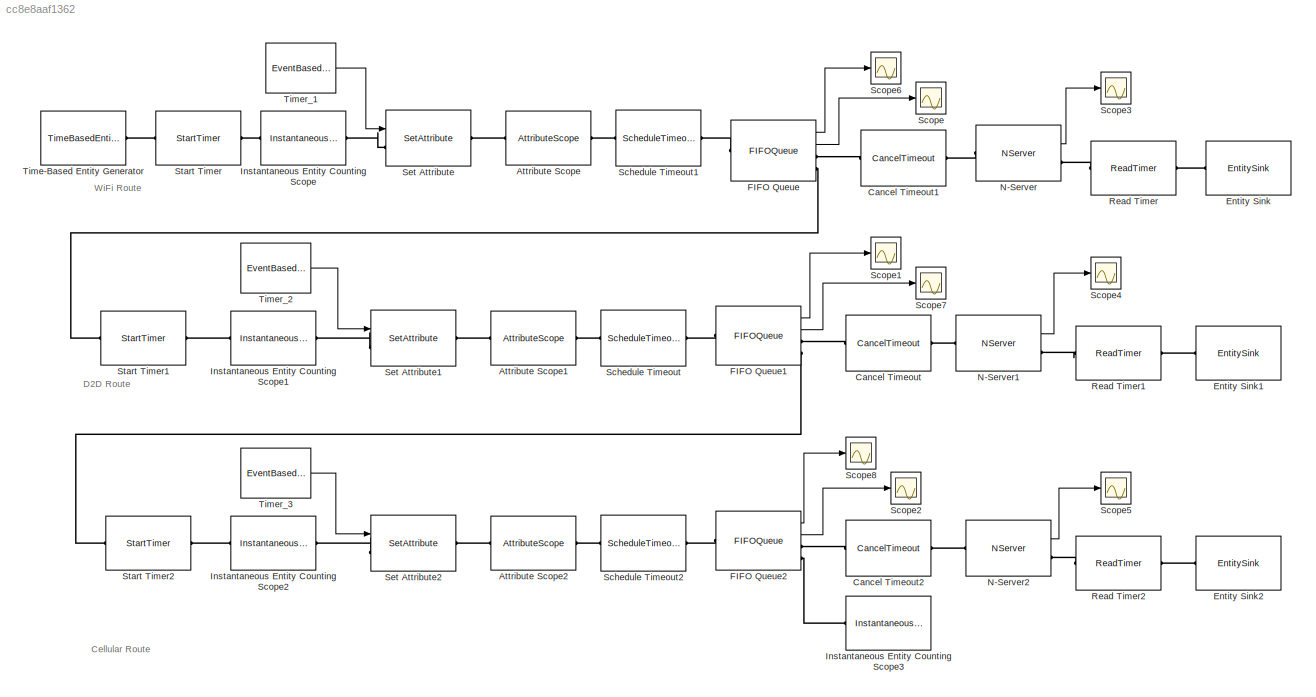
MODEL slx_cc8e8aaf1362
KIND model
CONFIG AbsTol = auto
CONFIG FixedStep = auto
CONFIG MaxStep = auto
CONFIG MinStep = auto
CONFIG RelTol = 1e-3
CONFIG SampleTimeConstraint = Unconstrained
CONFIG Solver = VariableStepAuto
CONFIG SolverMode = Auto
CONFIG SolverName = VariableStepAuto
CONFIG StartTime = 0.0
CONFIG StopTime = 500
BLOCK [AttributeScope] Attribute Scope
  AttributeNameY = Timer
  CopyFcn = des.scope.CallbackSupport('seCopyFcn',gcbh)
  DeleteFcn = des.scope.CallbackSupport('seDeleteFcn',gcbh)
  LoadFcn = des.scope.CallbackSupport('seLoadFcn',gcbh)
  NameChangeFcn = des.scope.CallbackSupport('seNameChangeFcn',gcbh)
  OpenFcn = des.scope.CallbackSupport('seOpenFcn',gcbh)
  Ports = [0, 0, 0, 0, 0, 1, 1]
  PreSaveFcn = des.scope.CallbackSupport('sePreSaveFcn',gcbh)
  StartFcn = des.scope.CallbackSupport('seStartFcn',gcbh)
  StopFcn = des.scope.CallbackSupport('seStopFcn',gcbh)
  Title = X Value from Event Time
  XLabel = Event Time (s)
  YLabel = No. of Entities in Queue
BLOCK [AttributeScope] Attribute Scope1
  AttributeNameY = Timer_2
  CopyFcn = des.scope.CallbackSupport('seCopyFcn',gcbh)
  DeleteFcn = des.scope.CallbackSupport('seDeleteFcn',gcbh)
  LoadFcn = des.scope.CallbackSupport('seLoadFcn',gcbh)
  NameChangeFcn = des.scope.CallbackSupport('seNameChangeFcn',gcbh)
  OpenFcn = des.scope.CallbackSupport('seOpenFcn',gcbh)
  Ports = [0, 0, 0, 0, 0, 1, 1]
  PreSaveFcn = des.scope.CallbackSupport('sePreSaveFcn',gcbh)
  StartFcn = des.scope.CallbackSupport('seStartFcn',gcbh)
  StopFcn = des.scope.CallbackSupport('seStopFcn',gcbh)
  Title = X Value from Event Time
  XLabel = Event Time (s)
  YLabel = No. of Entities in Queue
BLOCK [AttributeScope] Attribute Scope2
  AttributeNameY = Timer_3
  CopyFcn = des.scope.CallbackSupport('seCopyFcn',gcbh)
  DeleteFcn = des.scope.CallbackSupport('seDeleteFcn',gcbh)
  LoadFcn = des.scope.CallbackSupport('seLoadFcn',gcbh)
  NameChangeFcn = des.scope.CallbackSupport('seNameChangeFcn',gcbh)
  OpenFcn = des.scope.CallbackSupport('seOpenFcn',gcbh)
  Ports = [0, 0, 0, 0, 0, 1, 1]
  PreSaveFcn = des.scope.CallbackSupport('sePreSaveFcn',gcbh)
  StartFcn = des.scope.CallbackSupport('seStartFcn',gcbh)
  StopFcn = des.scope.CallbackSupport('seStopFcn',gcbh)
  Title = X Value from Event Time
  XLabel = Event Time (s)
  YLabel = No. of Entities in Queue
BLOCK [CancelTimeout] Cancel Timeout
  Ports = [0, 0, 0, 0, 0, 1, 1]
  TimeoutTag = TO2
BLOCK [CancelTimeout] Cancel Timeout1
  Ports = [0, 0, 0, 0, 0, 1, 1]
BLOCK [CancelTimeout] Cancel Timeout2
  Ports = [0, 0, 0, 0, 0, 1, 1]
  TimeoutTag = TO3
BLOCK [EntitySink] Entity Sink
  Ports = [0, 0, 0, 0, 0, 1]
BLOCK [EntitySink] Entity Sink1
  Ports = [0, 0, 0, 0, 0, 1]
BLOCK [EntitySink] Entity Sink2
  Ports = [0, 0, 0, 0, 0, 1]
BLOCK [FIFOQueue] FIFO Queue
  Capacity = Inf
  EnableTOPort = on
  OutputPortMap = o1,o3
  Ports = [0, 2, 0, 0, 0, 1, 2]
  StatAverageQueueLength = on
  StatNumberInBlock = on
BLOCK [FIFOQueue] FIFO Queue1
  Capacity = Inf
  EnableTOPort = on
  OutputPortMap = o1,o3
  Ports = [0, 2, 0, 0, 0, 1, 2]
  StatAverageQueueLength = on
  StatNumberInBlock = on
BLOCK [FIFOQueue] FIFO Queue2
  Capacity = Inf
  EnableTOPort = on
  OutputPortMap = o1,o3
  Ports = [0, 2, 0, 0, 0, 1, 2]
  StatAverageQueueLength = on
  StatNumberInBlock = on
BLOCK [InstantaneousEntityCountingScope] Instantaneous Entity Counting Scope
  CopyFcn = des.scope.CallbackSupport('seCopyFcn',gcbh)
  DeleteFcn = des.scope.CallbackSupport('seDeleteFcn',gcbh)
  LoadFcn = des.scope.CallbackSupport('seLoadFcn',gcbh)
  NameChangeFcn = des.scope.CallbackSupport('seNameChangeFcn',gcbh)
  OpenFcn = des.scope.CallbackSupport('seOpenFcn',gcbh)
  Ports = [0, 0, 0, 0, 0, 1, 1]
  PreSaveFcn = des.scope.CallbackSupport('sePreSaveFcn',gcbh)
  StartFcn = des.scope.CallbackSupport('seStartFcn',gcbh)
  StopFcn = des.scope.CallbackSupport('seStopFcn',gcbh)
BLOCK [InstantaneousEntityCountingScope] Instantaneous Entity Counting Scope1
  CopyFcn = des.scope.CallbackSupport('seCopyFcn',gcbh)
  DeleteFcn = des.scope.CallbackSupport('seDeleteFcn',gcbh)
  LoadFcn = des.scope.CallbackSupport('seLoadFcn',gcbh)
  NameChangeFcn = des.scope.CallbackSupport('seNameChangeFcn',gcbh)
  OpenFcn = des.scope.CallbackSupport('seOpenFcn',gcbh)
  Ports = [0, 0, 0, 0, 0, 1, 1]
  PreSaveFcn = des.scope.CallbackSupport('sePreSaveFcn',gcbh)
  StartFcn = des.scope.CallbackSupport('seStartFcn',gcbh)
  StopFcn = des.scope.CallbackSupport('seStopFcn',gcbh)
BLOCK [InstantaneousEntityCountingScope] Instantaneous Entity Counting Scope2
  CopyFcn = des.scope.CallbackSupport('seCopyFcn',gcbh)
  DeleteFcn = des.scope.CallbackSupport('seDeleteFcn',gcbh)
  LoadFcn = des.scope.CallbackSupport('seLoadFcn',gcbh)
  NameChangeFcn = des.scope.CallbackSupport('seNameChangeFcn',gcbh)
  OpenFcn = des.scope.CallbackSupport('seOpenFcn',gcbh)
  Ports = [0, 0, 0, 0, 0, 1, 1]
  PreSaveFcn = des.scope.CallbackSupport('sePreSaveFcn',gcbh)
  StartFcn = des.scope.CallbackSupport('seStartFcn',gcbh)
  StopFcn = des.scope.CallbackSupport('seStopFcn',gcbh)
BLOCK [InstantaneousEntityCountingScope] Instantaneous Entity Counting Scope3
  CopyFcn = des.scope.CallbackSupport('seCopyFcn',gcbh)
  DeleteFcn = des.scope.CallbackSupport('seDeleteFcn',gcbh)
  LoadFcn = des.scope.CallbackSupport('seLoadFcn',gcbh)
  NameChangeFcn = des.scope.CallbackSupport('seNameChangeFcn',gcbh)
  OpenFcn = des.scope.CallbackSupport('seOpenFcn',gcbh)
  Ports = [0, 0, 0, 0, 0, 1, 1]
  PreSaveFcn = des.scope.CallbackSupport('sePreSaveFcn',gcbh)
  StartFcn = des.scope.CallbackSupport('seStartFcn',gcbh)
  StopFcn = des.scope.CallbackSupport('seStopFcn',gcbh)
BLOCK [NServer] N-Server
  AttributeName = Patience
  NumberOfServers = 1
  OutputPortMap = o5
  Ports = [0, 1, 0, 0, 0, 1, 1]
  ServiceTimeFrom = Attribute
  StatUtilization = on
BLOCK [NServer] N-Server1
  AttributeName = Patience
  NumberOfServers = 1
  OutputPortMap = o5
  Ports = [0, 1, 0, 0, 0, 1, 1]
  ServiceTimeFrom = Attribute
  StatUtilization = on
BLOCK [NServer] N-Server2
  AttributeName = Patience
  NumberOfServers = 1
  OutputPortMap = o5
  Ports = [0, 1, 0, 0, 0, 1, 1]
  ServiceTimeFrom = Attribute
  StatUtilization = on
BLOCK [ReadTimer] Read Timer
  Ports = [0, 0, 0, 0, 0, 1, 1]
BLOCK [ReadTimer] Read Timer1
  Ports = [0, 0, 0, 0, 0, 1, 1]
BLOCK [ReadTimer] Read Timer2
  Ports = [0, 0, 0, 0, 0, 1, 1]
BLOCK [ScheduleTimeout] Schedule Timeout
  AttributeName = Timer_2
  Ports = [0, 0, 0, 0, 0, 1, 1]
  TimeoutIntervalFrom = Attribute
  TimeoutTag = TO2
BLOCK [ScheduleTimeout] Schedule Timeout1
  AttributeName = Timer
  Ports = [0, 0, 0, 0, 0, 1, 1]
  TimeoutIntervalFrom = Attribute
BLOCK [ScheduleTimeout] Schedule Timeout2
  AttributeName = Timer_3
  Ports = [0, 0, 0, 0, 0, 1, 1]
  TimeoutIntervalFrom = Attribute
  TimeoutTag = TO3
BLOCK [Scope] Scope
  Ports = [1]
  ScopeSpecificationString = Simulink.scopes.TimeScopeBlockCfg('CurrentConfiguration', extmgr.ConfigurationSet(extmgr.Configuration('Core','General UI',true,'FigureColor',[0.941176470588235 0.941176470588235 0.941176470588235]),extmgr.Configuration('Core','Source UI',true),extmgr.Configuration('Sources','WiredSimulink',true),extmgr.Configuration('Visuals','Time Domain',true,'SerializedDisplays',{struct('MinYLimReal','-797.974...<+1663ch>
BLOCK [Scope] Scope1
  Ports = [1]
  ScopeSpecificationString = Simulink.scopes.TimeScopeBlockCfg('CurrentConfiguration', extmgr.ConfigurationSet(extmgr.Configuration('Core','General UI',true,'FigureColor',[0.941176470588235 0.941176470588235 0.941176470588235]),extmgr.Configuration('Core','Source UI',true),extmgr.Configuration('Sources','WiredSimulink',true,'DataLoggingVariableName','ScopeData2'),extmgr.Configuration('Visuals','Time Domain',true,'SerializedDi...<+1685ch>
BLOCK [Scope] Scope2
  Ports = [1]
  ScopeSpecificationString = Simulink.scopes.TimeScopeBlockCfg('CurrentConfiguration', extmgr.ConfigurationSet(extmgr.Configuration('Core','General UI',true,'FigureColor',[0.941176470588235 0.941176470588235 0.941176470588235]),extmgr.Configuration('Core','Source UI',true),extmgr.Configuration('Sources','WiredSimulink',true,'DataLoggingVariableName','ScopeData4'),extmgr.Configuration('Visuals','Time Domain',true,'SerializedDi...<+1699ch>
BLOCK [Scope] Scope3
  Ports = [1]
  ScopeSpecificationString = Simulink.scopes.TimeScopeBlockCfg('CurrentConfiguration', extmgr.ConfigurationSet(extmgr.Configuration('Core','General UI',true,'FigureColor',[0.941176470588235 0.941176470588235 0.941176470588235]),extmgr.Configuration('Core','Source UI',true),extmgr.Configuration('Sources','WiredSimulink',true,'DataLoggingVariableName','ScopeData3'),extmgr.Configuration('Visuals','Time Domain',true,'SerializedDi...<+1686ch>
BLOCK [Scope] Scope4
  Ports = [1]
  ScopeSpecificationString = Simulink.scopes.TimeScopeBlockCfg('CurrentConfiguration', extmgr.ConfigurationSet(extmgr.Configuration('Core','General UI',true,'FigureColor',[0.941176470588235 0.941176470588235 0.941176470588235]),extmgr.Configuration('Core','Source UI',true),extmgr.Configuration('Sources','WiredSimulink',true,'DataLoggingVariableName','ScopeData4'),extmgr.Configuration('Visuals','Time Domain',true,'SerializedDi...<+1697ch>
BLOCK [Scope] Scope5
  Ports = [1]
  ScopeSpecificationString = Simulink.scopes.TimeScopeBlockCfg('CurrentConfiguration', extmgr.ConfigurationSet(extmgr.Configuration('Core','General UI',true,'FigureColor',[0.941176470588235 0.941176470588235 0.941176470588235]),extmgr.Configuration('Core','Source UI',true),extmgr.Configuration('Sources','WiredSimulink',true,'DataLoggingVariableName','ScopeData5'),extmgr.Configuration('Visuals','Time Domain',true,'SerializedDi...<+1707ch>
BLOCK [Scope] Scope6
  Ports = [1]
  ScopeSpecificationString = Simulink.scopes.TimeScopeBlockCfg('CurrentConfiguration', extmgr.ConfigurationSet(extmgr.Configuration('Core','General UI',true,'FigureColor',[0.941176470588235 0.941176470588235 0.941176470588235]),extmgr.Configuration('Core','Source UI',true),extmgr.Configuration('Sources','WiredSimulink',true,'DataLoggingVariableName','ScopeData1'),extmgr.Configuration('Visuals','Time Domain',true,'SerializedDi...<+1716ch>
BLOCK [Scope] Scope7
  Ports = [1]
  ScopeSpecificationString = Simulink.scopes.TimeScopeBlockCfg('CurrentConfiguration', extmgr.ConfigurationSet(extmgr.Configuration('Core','General UI',true,'FigureColor',[0.941176470588235 0.941176470588235 0.941176470588235]),extmgr.Configuration('Core','Source UI',true),extmgr.Configuration('Sources','WiredSimulink',true,'DataLoggingVariableName','ScopeData3'),extmgr.Configuration('Visuals','Time Domain',true,'SerializedDi...<+1713ch>
BLOCK [Scope] Scope8
  Ports = [1]
  ScopeSpecificationString = Simulink.scopes.TimeScopeBlockCfg('CurrentConfiguration', extmgr.ConfigurationSet(extmgr.Configuration('Core','General UI',true,'FigureColor',[0.941176470588235 0.941176470588235 0.941176470588235]),extmgr.Configuration('Core','Source UI',true),extmgr.Configuration('Sources','WiredSimulink',true,'DataLoggingVariableName','ScopeData5'),extmgr.Configuration('Visuals','Time Domain',true,'SerializedDi...<+1693ch>
BLOCK [SetAttribute] Set Attribute
  AttributeFrom = Signal port|Dialog
  AttributeName = Timer|Patience
  AttributeTreatAsVector = 1|1
  AttributeValue = 1|1
  EvaluatedAttributeValue = { [];1}
  InputPortMap = u0
  Ports = [1, 0, 0, 0, 0, 1, 1]
BLOCK [SetAttribute] Set Attribute1
  AttributeFrom = Signal port|Dialog
  AttributeName = Timer_2|Patience
  AttributeTreatAsVector = 1|1
  AttributeValue = 1|1
  EvaluatedAttributeValue = { [];1}
  InputPortMap = u0
  Ports = [1, 0, 0, 0, 0, 1, 1]
BLOCK [SetAttribute] Set Attribute2
  AttributeFrom = Signal port|Dialog
  AttributeName = Timer_3|Patience
  AttributeTreatAsVector = 1|1
  AttributeValue = 1|1
  EvaluatedAttributeValue = { [];1}
  InputPortMap = u0
  Ports = [1, 0, 0, 0, 0, 1, 1]
BLOCK [StartTimer] Start Timer
  Ports = [0, 0, 0, 0, 0, 1, 1]
BLOCK [StartTimer] Start Timer1
  Ports = [0, 0, 0, 0, 0, 1, 1]
BLOCK [StartTimer] Start Timer2
  Ports = [0, 0, 0, 0, 0, 1, 1]
BLOCK [TimeBasedEntityGenerator] Time-Based Entity Generator
  Distribution = Exponential
  InitialSeed = 30384
  Mean = 1/60
  Ports = [0, 0, 0, 0, 0, 0, 1]
BLOCK [EventBasedRandomNumber] Timer_1
  Distribution = Poisson
  OutputPortMap = o0
  Ports = [0, 1]
  Seed = 3452
  maxUnif = 120
  meanNorm = 90
  meanPoiss = 120
  stdNorm = 80
BLOCK [EventBasedRandomNumber] Timer_2
  Distribution = Poisson
  OutputPortMap = o0
  Ports = [0, 1]
  Seed = 12346
  maxUnif = 500
  meanNorm = 90
  meanPoiss = 30
  minUnif = 10
  stdNorm = 80
BLOCK [EventBasedRandomNumber] Timer_3
  Distribution = Poisson
  OutputPortMap = o0
  Ports = [0, 1]
  Seed = 12347
  maxUnif = 500
  meanNorm = 90
  meanPoiss = 120
  minUnif = 10
  stdNorm = 80
ANNOTATION (root): D2D Route
ANNOTATION (root): Cellular Route
ANNOTATION (root): WiFi Route
LINE FIFO Queue1:1 -> Scope1:1
LINE FIFO Queue1:2 -> Scope7:1
LINE FIFO Queue2:1 -> Scope8:1
LINE FIFO Queue2:2 -> Scope2:1
LINE FIFO Queue:1 -> Scope6:1
LINE FIFO Queue:2 -> Scope:1
LINE N-Server1:1 -> Scope4:1
LINE N-Server2:1 -> Scope5:1
LINE N-Server:1 -> Scope3:1
LINE Timer_1:1 -> Set Attribute:1
LINE Timer_2:1 -> Set Attribute1:1
LINE Timer_3:1 -> Set Attribute2:1
PLINE Attribute Scope1:LConn1 -- Set Attribute1:RConn1
PLINE Attribute Scope1:RConn1 -- Schedule Timeout:LConn1
PLINE Attribute Scope2:LConn1 -- Set Attribute2:RConn1
PLINE Attribute Scope2:RConn1 -- Schedule Timeout2:LConn1
PLINE Attribute Scope:LConn1 -- Set Attribute:RConn1
PLINE Attribute Scope:RConn1 -- Schedule Timeout1:LConn1
PLINE Cancel Timeout1:LConn1 -- FIFO Queue:RConn1
PLINE Cancel Timeout1:RConn1 -- N-Server:LConn1
PLINE Cancel Timeout2:LConn1 -- FIFO Queue2:RConn1
PLINE Cancel Timeout2:RConn1 -- N-Server2:LConn1
PLINE Cancel Timeout:LConn1 -- FIFO Queue1:RConn1
PLINE Cancel Timeout:RConn1 -- N-Server1:LConn1
PLINE Entity Sink1:LConn1 -- Read Timer1:RConn1
PLINE Entity Sink2:LConn1 -- Read Timer2:RConn1
PLINE Entity Sink:LConn1 -- Read Timer:RConn1
PLINE FIFO Queue1:LConn1 -- Schedule Timeout:RConn1
PLINE FIFO Queue1:RConn2 -- Start Timer2:LConn1
PLINE FIFO Queue2:LConn1 -- Schedule Timeout2:RConn1
PLINE FIFO Queue2:RConn2 -- Instantaneous Entity Counting Scope3:LConn1
PLINE FIFO Queue:LConn1 -- Schedule Timeout1:RConn1
PLINE FIFO Queue:RConn2 -- Start Timer1:LConn1
PLINE Instantaneous Entity Counting Scope1:LConn1 -- Start Timer1:RConn1
PLINE Instantaneous Entity Counting Scope1:RConn1 -- Set Attribute1:LConn1
PLINE Instantaneous Entity Counting Scope2:LConn1 -- Start Timer2:RConn1
PLINE Instantaneous Entity Counting Scope2:RConn1 -- Set Attribute2:LConn1
PLINE Instantaneous Entity Counting Scope:LConn1 -- Start Timer:RConn1
PLINE Instantaneous Entity Counting Scope:RConn1 -- Set Attribute:LConn1
PLINE N-Server1:RConn1 -- Read Timer1:LConn1
PLINE N-Server2:RConn1 -- Read Timer2:LConn1
PLINE N-Server:RConn1 -- Read Timer:LConn1
PLINE Start Timer:LConn1 -- Time-Based Entity Generator:RConn1
